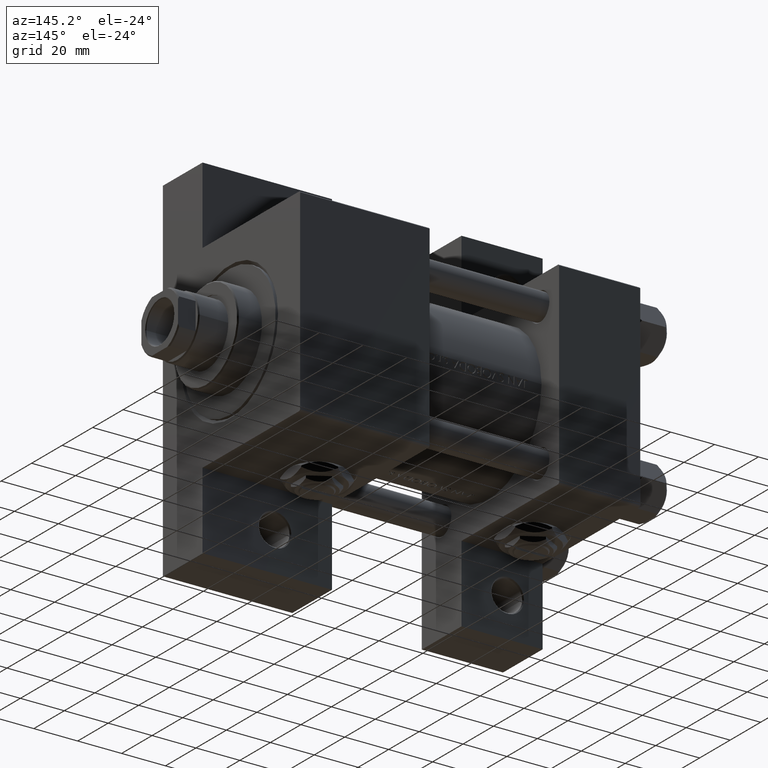
[diagram: clean part render]
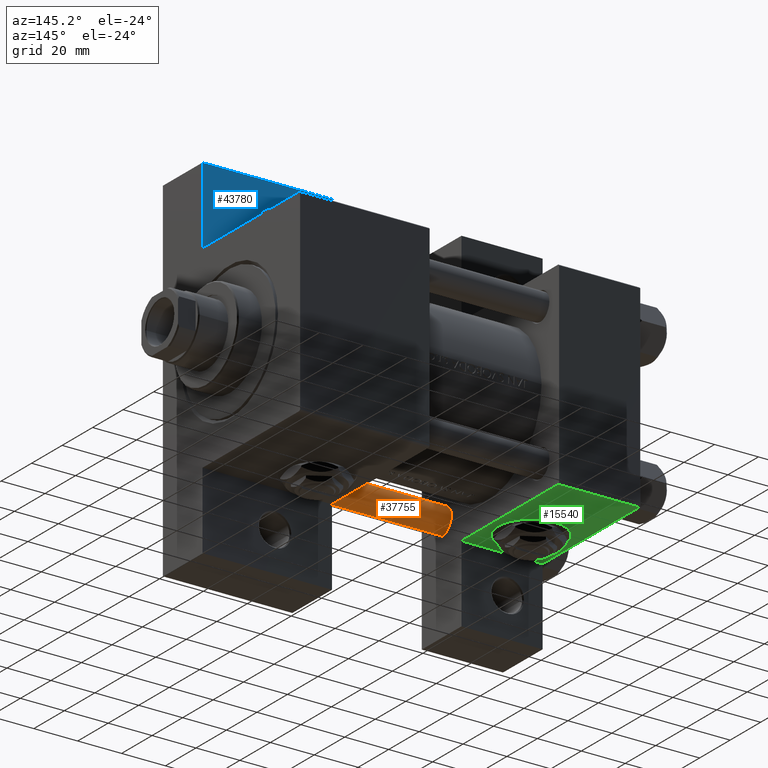
[diagram: same view with three faces highlighted in distinct colors, each labeled with its STEP entity id]
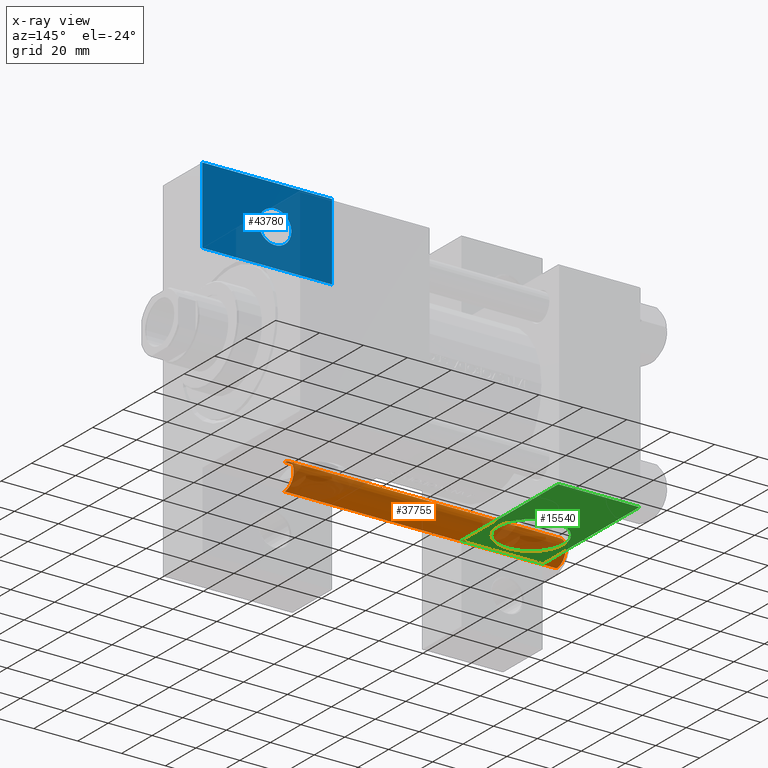
[diagram: x-ray of the same camera — body ghosted, the three highlighted faces saturated]
A machine part, auxiliary view with three faces highlighted in distinct colors.
The next image is the same camera in x-ray (body ghosted, the three faces saturated) — at least one of them is partly hidden behind the body in this view.
Their STEP definitions:

[orange] entity #37755 — the highlighted cylindrical surface (edge-blend (fillet) strip) has radius 6 mm, axis along (-1, 0, 0).
#604 = VECTOR ( 'NONE', #43804, 1000.000000000000000 ) ;
#2288 = CARTESIAN_POINT ( 'NONE',  ( -6.000000000000000888, 0.000000000000000000, 124.5000000000000000 ) ) ;
#4191 = VERTEX_POINT ( 'NONE', #23796 ) ;
#6892 = AXIS2_PLACEMENT_3D ( 'NONE', #27130, #46430, #16306 ) ;
#8102 = DIRECTION ( 'NONE',  ( -1.000000000000000000, 0.000000000000000000, 0.000000000000000000 ) ) ;
#10185 = CARTESIAN_POINT ( 'NONE',  ( 0.000000000000000000, 0.000000000000000000, 0.4999999999999865663 ) ) ;
#11057 = EDGE_CURVE ( 'NONE', #41651, #4191, #30511, .T. ) ;
#11399 = ORIENTED_EDGE ( 'NONE', *, *, #31006, .T. ) ;
#12357 = CARTESIAN_POINT ( 'NONE',  ( 0.000000000000000000, 0.000000000000000000, 125.0000000000000000 ) ) ;
#13049 = EDGE_LOOP ( 'NONE', ( #28172, #11399, #46719, #29023 ) ) ;
#16306 = DIRECTION ( 'NONE',  ( 1.000000000000000000, 0.000000000000000000, 0.000000000000000000 ) ) ;
#16704 = LINE ( 'NONE', #23999, #604 ) ;
#18064 = AXIS2_PLACEMENT_3D ( 'NONE', #10185, #20990, #32539 ) ;
#20990 = DIRECTION ( 'NONE',  ( -0.000000000000000000, -0.000000000000000000, 1.000000000000000000 ) ) ;
#23106 = AXIS2_PLACEMENT_3D ( 'NONE', #12357, #27198, #8102 ) ;
#23671 = FACE_OUTER_BOUND ( 'NONE', #13049, .T. ) ;
#23796 = CARTESIAN_POINT ( 'NONE',  ( 6.000000000000000888, 7.347880794884120722E-16, 0.4999999999999865663 ) ) ;
#23999 = CARTESIAN_POINT ( 'NONE',  ( -6.000000000000000888, 0.000000000000000000, 125.0000000000000000 ) ) ;
#27130 = CARTESIAN_POINT ( 'NONE',  ( 0.000000000000000000, 0.000000000000000000, 124.5000000000000000 ) ) ;
#27198 = DIRECTION ( 'NONE',  ( -0.000000000000000000, -0.000000000000000000, -1.000000000000000000 ) ) ;
#28172 = ORIENTED_EDGE ( 'NONE', *, *, #11057, .F. ) ;
#29023 = ORIENTED_EDGE ( 'NONE', *, *, #29257, .T. ) ;
#29257 = EDGE_CURVE ( 'NONE', #45265, #4191, #39684, .T. ) ;
#30270 = CARTESIAN_POINT ( 'NONE',  ( 6.000000000000000888, 7.347880794884120722E-16, 125.0000000000000000 ) ) ;
#30511 = LINE ( 'NONE', #30270, #34666 ) ;
#30873 = VERTEX_POINT ( 'NONE', #2288 ) ;
#31006 = EDGE_CURVE ( 'NONE', #41651, #30873, #37348, .T. ) ;
#32539 = DIRECTION ( 'NONE',  ( 1.000000000000000000, 0.000000000000000000, 0.000000000000000000 ) ) ;
#34666 = VECTOR ( 'NONE', #38523, 1000.000000000000000 ) ;
#37348 = CIRCLE ( 'NONE', #6892, 6.000000000000000888 ) ;
#37667 = CARTESIAN_POINT ( 'NONE',  ( 6.000000000000000888, 7.347880794884120722E-16, 124.5000000000000000 ) ) ;
#37755 = ADVANCED_FACE ( 'NONE', ( #23671 ), #42489, .T. ) ;
#38523 = DIRECTION ( 'NONE',  ( -0.000000000000000000, -0.000000000000000000, -1.000000000000000000 ) ) ;
#39552 = EDGE_CURVE ( 'NONE', #30873, #45265, #16704, .T. ) ;
#39684 = CIRCLE ( 'NONE', #18064, 6.000000000000000888 ) ;
#41651 = VERTEX_POINT ( 'NONE', #37667 ) ;
#42489 = CYLINDRICAL_SURFACE ( 'NONE', #23106, 6.000000000000000888 ) ;
#43804 = DIRECTION ( 'NONE',  ( -0.000000000000000000, -0.000000000000000000, -1.000000000000000000 ) ) ;
#45265 = VERTEX_POINT ( 'NONE', #45954 ) ;
#45954 = CARTESIAN_POINT ( 'NONE',  ( -6.000000000000000888, 0.000000000000000000, 0.4999999999999865663 ) ) ;
#46430 = DIRECTION ( 'NONE',  ( 0.000000000000000000, 0.000000000000000000, -1.000000000000000000 ) ) ;
#46719 = ORIENTED_EDGE ( 'NONE', *, *, #39552, .T. ) ;

[blue] entity #43780 — the highlighted planar face has unit normal (0, -1, 0).
#236 = VECTOR ( 'NONE', #41088, 1000.000000000000000 ) ;
#2346 = DIRECTION ( 'NONE',  ( 0.000000000000000000, 0.000000000000000000, -1.000000000000000000 ) ) ;
#2727 = CIRCLE ( 'NONE', #36359, 7.499500000000019817 ) ;
#3380 = DIRECTION ( 'NONE',  ( 0.000000000000000000, 0.000000000000000000, -1.000000000000000000 ) ) ;
#3938 = ORIENTED_EDGE ( 'NONE', *, *, #30606, .F. ) ;
#5926 = LINE ( 'NONE', #29526, #12774 ) ;
#6446 = LINE ( 'NONE', #17993, #236 ) ;
#7278 = VECTOR ( 'NONE', #27729, 1000.000000000000000 ) ;
#8468 = ORIENTED_EDGE ( 'NONE', *, *, #47007, .F. ) ;
#9229 = ORIENTED_EDGE ( 'NONE', *, *, #10204, .T. ) ;
#9873 = FACE_OUTER_BOUND ( 'NONE', #19183, .T. ) ;
#10204 = EDGE_CURVE ( 'NONE', #14575, #19376, #25008, .T. ) ;
#11364 = DIRECTION ( 'NONE',  ( 3.965082230804131699E-16, 1.000000000000000000, 0.000000000000000000 ) ) ;
#11635 = CARTESIAN_POINT ( 'NONE',  ( 122.0000000000000000, -62.00000000000000000, -19.00000000000000000 ) ) ;
#12774 = VECTOR ( 'NONE', #25505, 1000.000000000000000 ) ;
#13637 = DIRECTION ( 'NONE',  ( -1.000000000000000000, 0.000000000000000000, -0.000000000000000000 ) ) ;
#14464 = EDGE_CURVE ( 'NONE', #19376, #14575, #2727, .T. ) ;
#14575 = VERTEX_POINT ( 'NONE', #20651 ) ;
#15136 = LINE ( 'NONE', #23162, #30149 ) ;
#15838 = VERTEX_POINT ( 'NONE', #19914 ) ;
#17993 = CARTESIAN_POINT ( 'NONE',  ( 95.99999999999998579, -79.99999999999998579, -19.00000000000000000 ) ) ;
#19183 = EDGE_LOOP ( 'NONE', ( #24615, #8468, #3938, #42105 ) ) ;
#19376 = VERTEX_POINT ( 'NONE', #38535 ) ;
#19914 = CARTESIAN_POINT ( 'NONE',  ( 155.0000000000000000, -44.99999999999999289, -18.99999999999997513 ) ) ;
#20651 = CARTESIAN_POINT ( 'NONE',  ( 129.4995000000000118, -62.00000000000000000, -19.00000000000000000 ) ) ;
#20900 = VERTEX_POINT ( 'NONE', #46973 ) ;
#21429 = EDGE_CURVE ( 'NONE', #20900, #22503, #6446, .T. ) ;
#22115 = DIRECTION ( 'NONE',  ( -1.000000000000000000, 0.000000000000000000, 0.000000000000000000 ) ) ;
#22503 = VERTEX_POINT ( 'NONE', #31504 ) ;
#22980 = LINE ( 'NONE', #42289, #7278 ) ;
#23162 = CARTESIAN_POINT ( 'NONE',  ( 95.99999999999998579, -79.99999999999998579, -19.00000000000000000 ) ) ;
#23902 = AXIS2_PLACEMENT_3D ( 'NONE', #24687, #2346, #13637 ) ;
#24615 = ORIENTED_EDGE ( 'NONE', *, *, #43574, .F. ) ;
#24687 = CARTESIAN_POINT ( 'NONE',  ( 0.000000000000000000, 0.000000000000000000, -19.00000000000000000 ) ) ;
#25008 = CIRCLE ( 'NONE', #46636, 7.499500000000019817 ) ;
#25505 = DIRECTION ( 'NONE',  ( 1.000000000000000000, 0.000000000000000000, 0.000000000000000000 ) ) ;
#27729 = DIRECTION ( 'NONE',  ( 7.930164461608253537E-16, -1.000000000000000000, -0.000000000000000000 ) ) ;
#28864 = VERTEX_POINT ( 'NONE', #47680 ) ;
#29526 = CARTESIAN_POINT ( 'NONE',  ( 96.00000000000000000, -45.00000000000000000, -19.00000000000000000 ) ) ;
#30149 = VECTOR ( 'NONE', #11364, 1000.000000000000000 ) ;
#30606 = EDGE_CURVE ( 'NONE', #22503, #28864, #15136, .T. ) ;
#31504 = CARTESIAN_POINT ( 'NONE',  ( 95.99999999999998579, -79.99999999999998579, -19.00000000000000000 ) ) ;
#33658 = CARTESIAN_POINT ( 'NONE',  ( 122.0000000000000000, -62.00000000000000000, -19.00000000000000000 ) ) ;
#36359 = AXIS2_PLACEMENT_3D ( 'NONE', #11635, #3380, #42744 ) ;
#36490 = PLANE ( 'NONE',  #23902 ) ;
#37763 = EDGE_LOOP ( 'NONE', ( #9229, #43311 ) ) ;
#38535 = CARTESIAN_POINT ( 'NONE',  ( 114.5004999999999740, -62.00000000000000000, -19.00000000000000000 ) ) ;
#41088 = DIRECTION ( 'NONE',  ( -1.000000000000000000, 7.056502275159895171E-16, -0.000000000000000000 ) ) ;
#41434 = DIRECTION ( 'NONE',  ( 0.000000000000000000, 0.000000000000000000, -1.000000000000000000 ) ) ;
#42105 = ORIENTED_EDGE ( 'NONE', *, *, #21429, .F. ) ;
#42289 = CARTESIAN_POINT ( 'NONE',  ( 154.9999999999999716, -80.00000000000002842, -19.00000000000000000 ) ) ;
#42744 = DIRECTION ( 'NONE',  ( -1.000000000000000000, 0.000000000000000000, 0.000000000000000000 ) ) ;
#43311 = ORIENTED_EDGE ( 'NONE', *, *, #14464, .T. ) ;
#43574 = EDGE_CURVE ( 'NONE', #15838, #20900, #22980, .T. ) ;
#43780 = ADVANCED_FACE ( 'NONE', ( #47771, #9873 ), #36490, .F. ) ;
#46636 = AXIS2_PLACEMENT_3D ( 'NONE', #33658, #41434, #22115 ) ;
#46973 = CARTESIAN_POINT ( 'NONE',  ( 154.9999999999999716, -80.00000000000002842, -19.00000000000000000 ) ) ;
#47007 = EDGE_CURVE ( 'NONE', #28864, #15838, #5926, .T. ) ;
#47680 = CARTESIAN_POINT ( 'NONE',  ( 96.00000000000000000, -45.00000000000000000, -19.00000000000000000 ) ) ;
#47771 = FACE_BOUND ( 'NONE', #37763, .T. ) ;

[green] entity #15540 — the highlighted planar face has unit normal (0, 0, -1).
#2397 = DIRECTION ( 'NONE',  ( 0.000000000000000000, -0.000000000000000000, 1.000000000000000000 ) ) ;
#2559 = DIRECTION ( 'NONE',  ( 0.000000000000000000, 0.000000000000000000, -1.000000000000000000 ) ) ;
#2682 = CARTESIAN_POINT ( 'NONE',  ( 18.50000000000000000, 44.99999999999998579, 0.000000000000000000 ) ) ;
#3341 = VECTOR ( 'NONE', #13354, 1000.000000000000000 ) ;
#3795 = VERTEX_POINT ( 'NONE', #27391 ) ;
#4041 = ORIENTED_EDGE ( 'NONE', *, *, #18053, .F. ) ;
#4238 = VERTEX_POINT ( 'NONE', #32065 ) ;
#5263 = CARTESIAN_POINT ( 'NONE',  ( 0.000000000000000000, 44.99999999999998579, -18.99999999999997513 ) ) ;
#5409 = PLANE ( 'NONE',  #38119 ) ;
#5447 = CARTESIAN_POINT ( 'NONE',  ( 18.50000000000000000, 44.99999999999998579, 0.000000000000000000 ) ) ;
#5484 = LINE ( 'NONE', #39871, #36258 ) ;
#6245 = EDGE_CURVE ( 'NONE', #3795, #49276, #5484, .T. ) ;
#6465 = DIRECTION ( 'NONE',  ( 0.000000000000000000, 0.000000000000000000, 1.000000000000000000 ) ) ;
#7199 = DIRECTION ( 'NONE',  ( 0.000000000000000000, 1.000000000000000000, 0.000000000000000000 ) ) ;
#7498 = CIRCLE ( 'NONE', #47569, 15.00000000000000178 ) ;
#9880 = VECTOR ( 'NONE', #2559, 1000.000000000000000 ) ;
#10542 = EDGE_CURVE ( 'NONE', #3795, #27512, #18526, .T. ) ;
#10790 = AXIS2_PLACEMENT_3D ( 'NONE', #5447, #7199, #6465 ) ;
#13012 = VERTEX_POINT ( 'NONE', #23792 ) ;
#13354 = DIRECTION ( 'NONE',  ( 1.000000000000000000, -3.750753461571474452E-16, 0.000000000000000000 ) ) ;
#13425 = ORIENTED_EDGE ( 'NONE', *, *, #22801, .T. ) ;
#13432 = DIRECTION ( 'NONE',  ( -0.000000000000000000, 1.000000000000000000, 0.000000000000000000 ) ) ;
#14969 = EDGE_LOOP ( 'NONE', ( #4041, #22815, #23060, #13425 ) ) ;
#15430 = VERTEX_POINT ( 'NONE', #34801 ) ;
#15540 = ADVANCED_FACE ( 'NONE', ( #40305, #44324 ), #5409, .T. ) ;
#17477 = DIRECTION ( 'NONE',  ( 0.000000000000000000, 0.000000000000000000, 1.000000000000000000 ) ) ;
#17709 = CARTESIAN_POINT ( 'NONE',  ( 37.00000000000000000, 44.99999999999998579, 45.00000000000001421 ) ) ;
#18053 = EDGE_CURVE ( 'NONE', #27512, #4238, #35716, .T. ) ;
#18241 = DIRECTION ( 'NONE',  ( 0.000000000000000000, 1.000000000000000000, 0.000000000000000000 ) ) ;
#18526 = LINE ( 'NONE', #40623, #22655 ) ;
#20800 = DIRECTION ( 'NONE',  ( 1.000000000000000000, 0.000000000000000000, 0.000000000000000000 ) ) ;
#22254 = EDGE_CURVE ( 'NONE', #15430, #13012, #7498, .T. ) ;
#22655 = VECTOR ( 'NONE', #36862, 1000.000000000000000 ) ;
#22801 = EDGE_CURVE ( 'NONE', #49276, #4238, #43960, .T. ) ;
#22815 = ORIENTED_EDGE ( 'NONE', *, *, #10542, .F. ) ;
#23060 = ORIENTED_EDGE ( 'NONE', *, *, #6245, .T. ) ;
#23792 = CARTESIAN_POINT ( 'NONE',  ( 18.50000000000000000, 44.99999999999998579, 15.00000000000000178 ) ) ;
#24190 = EDGE_CURVE ( 'NONE', #13012, #15430, #29220, .T. ) ;
#24499 = ORIENTED_EDGE ( 'NONE', *, *, #24190, .F. ) ;
#27391 = CARTESIAN_POINT ( 'NONE',  ( 0.000000000000000000, 44.99999999999998579, 44.50000000000001421 ) ) ;
#27512 = VERTEX_POINT ( 'NONE', #5263 ) ;
#29220 = CIRCLE ( 'NONE', #10790, 15.00000000000000178 ) ;
#31849 = ORIENTED_EDGE ( 'NONE', *, *, #22254, .F. ) ;
#32065 = CARTESIAN_POINT ( 'NONE',  ( 37.00000000000001421, 45.00000000000002132, -18.99999999999999645 ) ) ;
#34801 = CARTESIAN_POINT ( 'NONE',  ( 18.50000000000000355, 44.99999999999998579, -15.00000000000000178 ) ) ;
#35716 = LINE ( 'NONE', #39479, #3341 ) ;
#36258 = VECTOR ( 'NONE', #20800, 1000.000000000000000 ) ;
#36443 = CARTESIAN_POINT ( 'NONE',  ( 37.00000000000000000, 44.99999999999998579, 45.00000000000001421 ) ) ;
#36862 = DIRECTION ( 'NONE',  ( 0.000000000000000000, 0.000000000000000000, -1.000000000000000000 ) ) ;
#38119 = AXIS2_PLACEMENT_3D ( 'NONE', #17709, #13432, #2397 ) ;
#39230 = EDGE_LOOP ( 'NONE', ( #24499, #31849 ) ) ;
#39479 = CARTESIAN_POINT ( 'NONE',  ( 1.030725107000828166E-14, 45.00000000000004263, -19.00000000000000355 ) ) ;
#39871 = CARTESIAN_POINT ( 'NONE',  ( 37.00000000000000000, 44.99999999999998579, 44.50000000000001421 ) ) ;
#40305 = FACE_OUTER_BOUND ( 'NONE', #14969, .T. ) ;
#40623 = CARTESIAN_POINT ( 'NONE',  ( 0.000000000000000000, 44.99999999999998579, 45.00000000000001421 ) ) ;
#43960 = LINE ( 'NONE', #36443, #9880 ) ;
#44324 = FACE_BOUND ( 'NONE', #39230, .T. ) ;
#46709 = CARTESIAN_POINT ( 'NONE',  ( 37.00000000000000000, 44.99999999999998579, 44.50000000000001421 ) ) ;
#47569 = AXIS2_PLACEMENT_3D ( 'NONE', #2682, #18241, #17477 ) ;
#49276 = VERTEX_POINT ( 'NONE', #46709 ) ;